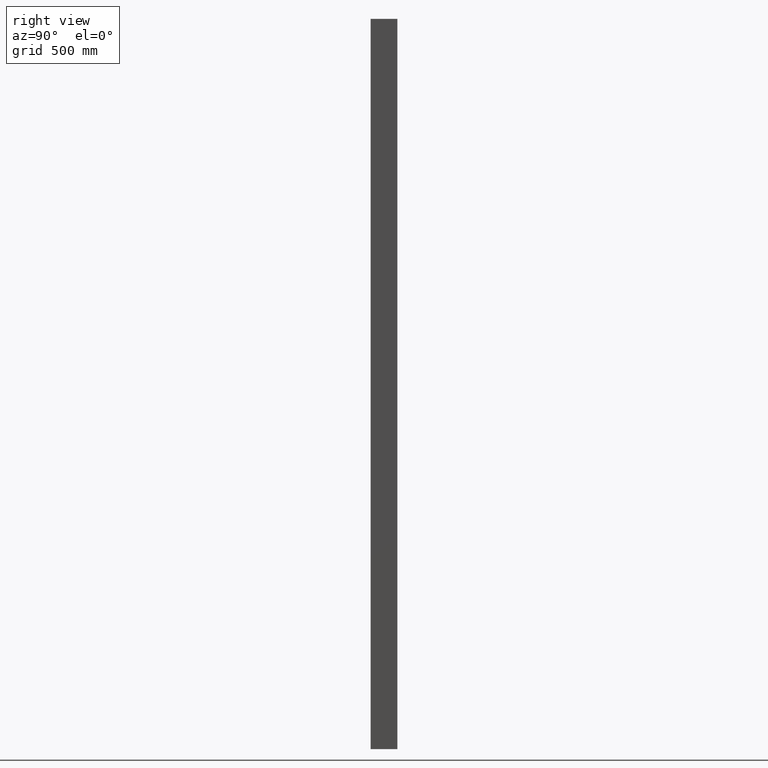
[diagram: clean part render]
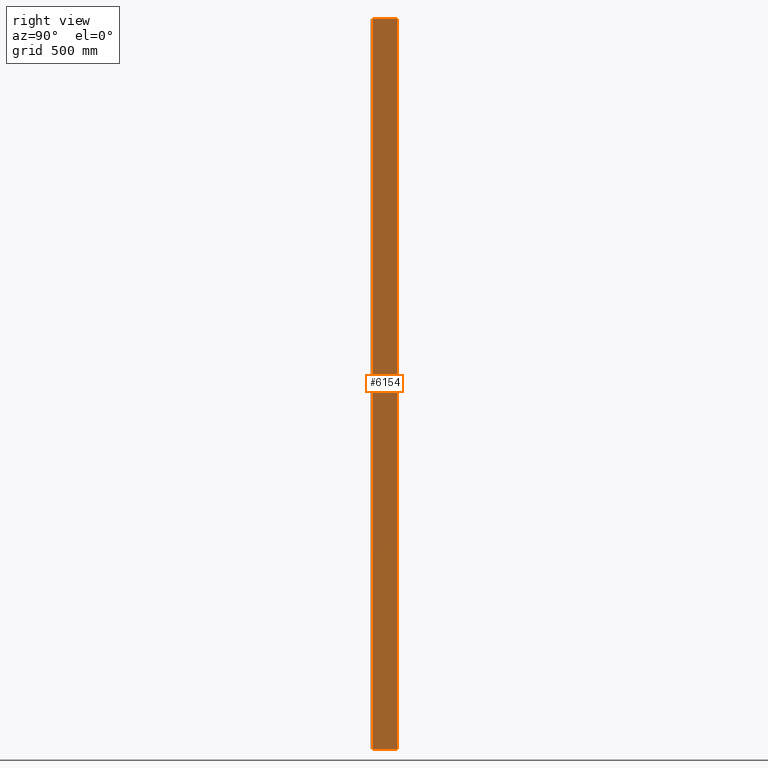
[diagram: same view with one face highlighted and labeled with its STEP entity id]
A machine part, right view. The second image highlights one B-rep face of the part: STEP entity #6154.
In plain terms, the highlighted planar face has unit normal (-1, -0, 0).
Its self-contained STEP definition (entity closure, byte-faithful):
#37 = CARTESIAN_POINT ( 'NONE',  ( 40.99999999998216500, 109.9999999998883200, 1500.000000000000000 ) ) ;
#699 = EDGE_CURVE ( 'NONE', #933, #4311, #10721, .T. ) ;
#845 = VERTEX_POINT ( 'NONE', #15032 ) ;
#933 = VERTEX_POINT ( 'NONE', #37 ) ;
#938 = CARTESIAN_POINT ( 'NONE',  ( 40.99999999998218700, 7.999999999864752600, -1500.000000000000000 ) ) ;
#1189 = ORIENTED_EDGE ( 'NONE', *, *, #8814, .T. ) ;
#1236 = CARTESIAN_POINT ( 'NONE',  ( 40.99999999998216500, 109.9999999998883200, 1500.000000000000000 ) ) ;
#1250 = EDGE_CURVE ( 'NONE', #13832, #933, #3249, .T. ) ;
#2651 = VECTOR ( 'NONE', #13502, 1000.000000000000000 ) ;
#2720 = ORIENTED_EDGE ( 'NONE', *, *, #1250, .F. ) ;
#3249 = LINE ( 'NONE', #5086, #5378 ) ;
#4311 = VERTEX_POINT ( 'NONE', #10022 ) ;
#5086 = CARTESIAN_POINT ( 'NONE',  ( 40.99999999998218700, 7.999999999864752600, 1500.000000000000000 ) ) ;
#5378 = VECTOR ( 'NONE', #8841, 1000.000000000000000 ) ;
#6069 = EDGE_LOOP ( 'NONE', ( #1189, #6127, #2720, #9959 ) ) ;
#6127 = ORIENTED_EDGE ( 'NONE', *, *, #699, .F. ) ;
#6154 = ADVANCED_FACE ( 'NONE', ( #16111 ), #9225, .F. ) ;
#6417 = VECTOR ( 'NONE', #8254, 1000.000000000000000 ) ;
#8254 = DIRECTION ( 'NONE',  ( -0.0000000000000000000, -0.0000000000000000000, -1.000000000000000000 ) ) ;
#8814 = EDGE_CURVE ( 'NONE', #845, #4311, #10190, .T. ) ;
#8841 = DIRECTION ( 'NONE',  ( -2.721134864276716000E-016, 1.000000000000000000, 0.0000000000000000000 ) ) ;
#9225 = PLANE ( 'NONE',  #11973 ) ;
#9797 = VECTOR ( 'NONE', #14950, 1000.000000000000000 ) ;
#9959 = ORIENTED_EDGE ( 'NONE', *, *, #12225, .T. ) ;
#10022 = CARTESIAN_POINT ( 'NONE',  ( 40.99999999998216500, 109.9999999998883200, -1500.000000000000000 ) ) ;
#10190 = LINE ( 'NONE', #938, #9797 ) ;
#10501 = CARTESIAN_POINT ( 'NONE',  ( 40.99999999998218700, 7.999999999864752600, 1500.000000000000000 ) ) ;
#10615 = DIRECTION ( 'NONE',  ( 2.721134864276716000E-016, -1.000000000000000000, 0.0000000000000000000 ) ) ;
#10721 = LINE ( 'NONE', #1236, #2651 ) ;
#11973 = AXIS2_PLACEMENT_3D ( 'NONE', #10501, #13139, #10615 ) ;
#12225 = EDGE_CURVE ( 'NONE', #13832, #845, #14173, .T. ) ;
#12346 = CARTESIAN_POINT ( 'NONE',  ( 40.99999999998218700, 7.999999999864752600, 1500.000000000000000 ) ) ;
#13139 = DIRECTION ( 'NONE',  ( -1.000000000000000000, -2.721134864276716000E-016, 0.0000000000000000000 ) ) ;
#13194 = CARTESIAN_POINT ( 'NONE',  ( 40.99999999998218700, 7.999999999864752600, 1500.000000000000000 ) ) ;
#13502 = DIRECTION ( 'NONE',  ( -0.0000000000000000000, -0.0000000000000000000, -1.000000000000000000 ) ) ;
#13832 = VERTEX_POINT ( 'NONE', #12346 ) ;
#14173 = LINE ( 'NONE', #13194, #6417 ) ;
#14950 = DIRECTION ( 'NONE',  ( -2.721134864276716000E-016, 1.000000000000000000, 0.0000000000000000000 ) ) ;
#15032 = CARTESIAN_POINT ( 'NONE',  ( 40.99999999998218700, 7.999999999864752600, -1500.000000000000000 ) ) ;
#16111 = FACE_OUTER_BOUND ( 'NONE', #6069, .T. ) ;